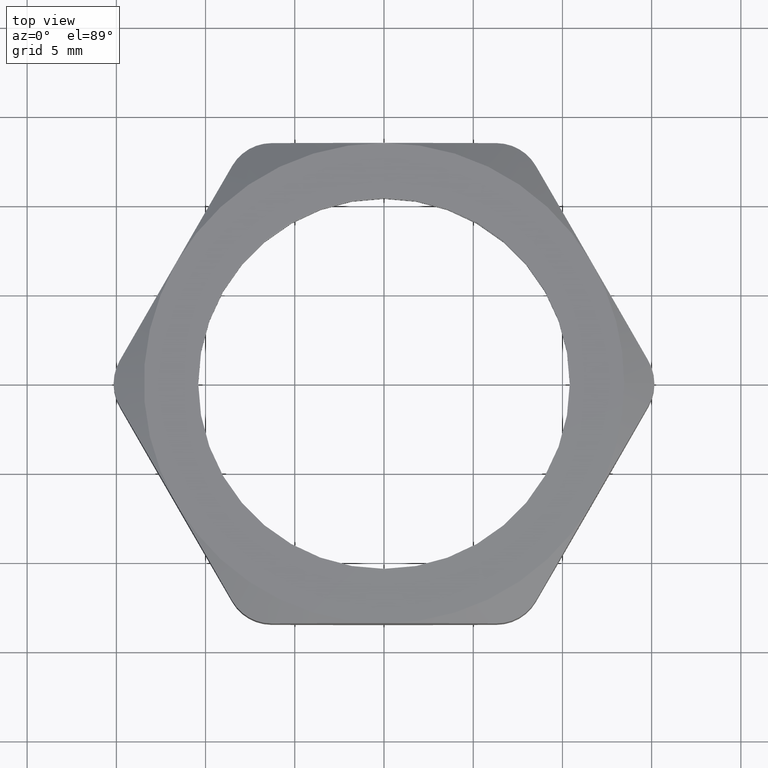
[diagram: clean part render]
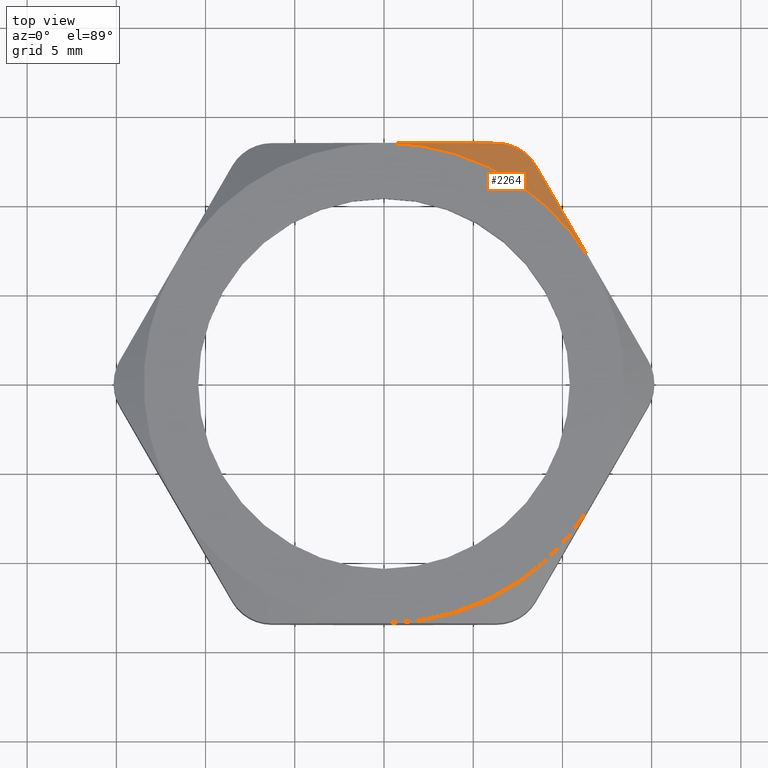
[diagram: same view with one face highlighted and labeled with its STEP entity id]
A machine part, top view. The second image highlights one B-rep face of the part: STEP entity #2264.
In plain terms, the highlighted conical surface has half-angle 60 deg.
Its self-contained STEP definition (entity closure, byte-faithful):
#83 = CARTESIAN_POINT ( 'NONE',  ( 0.4485028499786487500, 0.2831702764975391200, 0.2400000000000002700 ) ) ;
#84 = CARTESIAN_POINT ( 'NONE',  ( 0.4379583154012972000, 0.3014339461276789300, 0.2392714483092690000 ) ) ;
#85 = CARTESIAN_POINT ( 'NONE',  ( 0.4170586570876147500, 0.3376332161878061200, 0.2364242204120068600 ) ) ;
#168 = VERTEX_POINT ( 'NONE', #509 ) ;
#175 = EDGE_CURVE ( 'NONE', #2207, #168, #2362, .T. ) ;
#191 = EDGE_CURVE ( 'NONE', #2207, #2173, #702, .T. ) ;
#494 = CARTESIAN_POINT ( 'NONE',  ( 0.4589934640057527500, 0.2650000000000000700, 0.2399999999999999900 ) ) ;
#509 = CARTESIAN_POINT ( 'NONE',  ( 0.3348631561299831900, 0.4800000000000002600, 0.2080936187378567800 ) ) ;
#643 = CARTESIAN_POINT ( 'NONE',  ( 0.0000000000000000000, 0.0000000000000000000, 0.2399999999999999900 ) ) ;
#699 = DIRECTION ( 'NONE',  ( 1.000000000000000000, 0.0000000000000000000, 0.0000000000000000000 ) ) ;
#700 = DIRECTION ( 'NONE',  ( 0.0000000000000000000, 0.0000000000000000000, 1.000000000000000000 ) ) ;
#701 = AXIS2_PLACEMENT_3D ( 'NONE', #643, #700, #699 ) ;
#702 = CIRCLE ( 'NONE', #701, 0.5300000000000002500 ) ;
#1262 = B_SPLINE_CURVE_WITH_KNOTS ( 'NONE', 3,
 ( #1317, #1316, #1315, #1314, #1313, #1312 ),
 .UNSPECIFIED., .F., .F.,
 ( 4, 2, 4 ),
 ( 0.04003326252540465700, 0.04320879708514143600, 0.04638433164487821400 ),
 .UNSPECIFIED. ) ;
#1276 = CARTESIAN_POINT ( 'NONE',  ( 0.2482606157515392700, 0.5300000000000002500, 0.2080936187378568100 ) ) ;
#1312 = CARTESIAN_POINT ( 'NONE',  ( -5.914624404477003900E-017, 0.5300000000000001400, 0.2399999999999999900 ) ) ;
#1313 = CARTESIAN_POINT ( 'NONE',  ( 0.04181844682058769700, 0.5300000000000001400, 0.2400000000000000700 ) ) ;
#1314 = CARTESIAN_POINT ( 'NONE',  ( 0.08415995574332793500, 0.5300000000000001400, 0.2370430615140989800 ) ) ;
#1315 = CARTESIAN_POINT ( 'NONE',  ( 0.1670878377904241900, 0.5300000000000002500, 0.2260005700019938900 ) ) ;
#1316 = CARTESIAN_POINT ( 'NONE',  ( 0.2079115416018539900, 0.5300000000000001400, 0.2179752661621824100 ) ) ;
#1317 = CARTESIAN_POINT ( 'NONE',  ( 0.2482606157515392700, 0.5300000000000002500, 0.2080936187378568100 ) ) ;
#1318 = CARTESIAN_POINT ( 'NONE',  ( -5.914624404477003900E-017, 0.5300000000000001400, 0.2399999999999999900 ) ) ;
#1344 = CARTESIAN_POINT ( 'NONE',  ( 0.4589934640057527500, 0.2650000000000000700, 0.2399999999999999900 ) ) ;
#1458 = FACE_OUTER_BOUND ( 'NONE', #2259, .T. ) ;
#1472 = CARTESIAN_POINT ( 'NONE',  ( 0.2482606157515392700, 0.5300000000000002500, 0.2080936187378568100 ) ) ;
#1473 = CARTESIAN_POINT ( 'NONE',  ( 0.2568942740270133700, 0.5300000000000005800, 0.2059792017689852100 ) ) ;
#1474 = CARTESIAN_POINT ( 'NONE',  ( 0.2656273913978735000, 0.5288641547770693800, 0.2043413060484504700 ) ) ;
#1475 = CARTESIAN_POINT ( 'NONE',  ( 0.2824434795543636600, 0.5243782698420138600, 0.2021571432969639400 ) ) ;
#1476 = CARTESIAN_POINT ( 'NONE',  ( 0.2907320853714414100, 0.5209573296660071600, 0.2015905404625063800 ) ) ;
#1477 = CARTESIAN_POINT ( 'NONE',  ( 0.3059297120955316000, 0.5121665192065011400, 0.2015973893732986900 ) ) ;
#1478 = CARTESIAN_POINT ( 'NONE',  ( 0.3129680990160639800, 0.5067437669689076600, 0.2021617336542233800 ) ) ;
#1479 = CARTESIAN_POINT ( 'NONE',  ( 0.3253203252401387600, 0.4943309049566332300, 0.2043704327233680500 ) ) ;
#1480 = CARTESIAN_POINT ( 'NONE',  ( 0.3305474258513004800, 0.4874750641144418000, 0.2059797399988195200 ) ) ;
#1481 = CARTESIAN_POINT ( 'NONE',  ( 0.3348631561299831900, 0.4800000000000002600, 0.2080936187378567800 ) ) ;
#1484 = B_SPLINE_CURVE_WITH_KNOTS ( 'NONE', 3,
 ( #1481, #1480, #1479, #1478, #1477, #1476, #1475, #1474, #1473, #1472 ),
 .UNSPECIFIED., .F., .F.,
 ( 4, 2, 2, 2, 4 ),
 ( 1.734723475976807100E-018, 0.0006680279323233935800, 0.001336055864646785400, 0.002004083796970177200, 0.002672111729293569100 ),
 .UNSPECIFIED. ) ;
#1511 = DIRECTION ( 'NONE',  ( 1.000000000000000000, 0.0000000000000000000, 0.0000000000000000000 ) ) ;
#1512 = DIRECTION ( 'NONE',  ( 0.0000000000000000000, 0.0000000000000000000, -1.000000000000000000 ) ) ;
#1513 = CARTESIAN_POINT ( 'NONE',  ( 0.0000000000000000000, 0.0000000000000000000, 0.2399999999999999900 ) ) ;
#1514 = AXIS2_PLACEMENT_3D ( 'NONE', #1513, #1512, #1511 ) ;
#1515 = CONICAL_SURFACE ( 'NONE', #1514, 0.5300000000000002500, 1.047197551196600100 ) ;
#2154 = CARTESIAN_POINT ( 'NONE',  ( 0.4066661899953433200, 0.3556334972076077300, 0.2343080058279306800 ) ) ;
#2156 = CARTESIAN_POINT ( 'NONE',  ( 0.3756457015016789200, 0.4093625593542405400, 0.2260647668561306100 ) ) ;
#2157 = CARTESIAN_POINT ( 'NONE',  ( 0.3551746586701236000, 0.4448194456224126600, 0.2180423529276610800 ) ) ;
#2158 = CARTESIAN_POINT ( 'NONE',  ( 0.3348631561299831900, 0.4800000000000002600, 0.2080936187378567800 ) ) ;
#2163 = VERTEX_POINT ( 'NONE', #1276 ) ;
#2170 = EDGE_CURVE ( 'NONE', #2163, #2173, #1262, .T. ) ;
#2173 = VERTEX_POINT ( 'NONE', #1318 ) ;
#2207 = VERTEX_POINT ( 'NONE', #1344 ) ;
#2252 = ORIENTED_EDGE ( 'NONE', *, *, #2254, .T. ) ;
#2253 = ORIENTED_EDGE ( 'NONE', *, *, #2170, .T. ) ;
#2254 = EDGE_CURVE ( 'NONE', #168, #2163, #1484, .T. ) ;
#2256 = ORIENTED_EDGE ( 'NONE', *, *, #175, .T. ) ;
#2259 = EDGE_LOOP ( 'NONE', ( #2256, #2252, #2253, #2290 ) ) ;
#2264 = ADVANCED_FACE ( 'NONE', ( #1458 ), #1515, .T. ) ;
#2290 = ORIENTED_EDGE ( 'NONE', *, *, #191, .F. ) ;
#2362 = B_SPLINE_CURVE_WITH_KNOTS ( 'NONE', 3,
 ( #494, #83, #84, #85, #2154, #2156, #2157, #2158 ),
 .UNSPECIFIED., .F., .F.,
 ( 4, 2, 2, 4 ),
 ( 0.007864521838742749900, 0.009447047830300864600, 0.01102957382185897600, 0.01419462580497520300 ),
 .UNSPECIFIED. ) ;